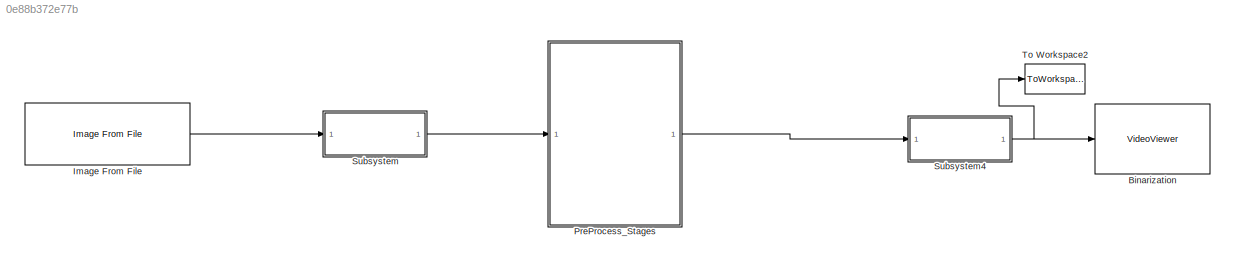
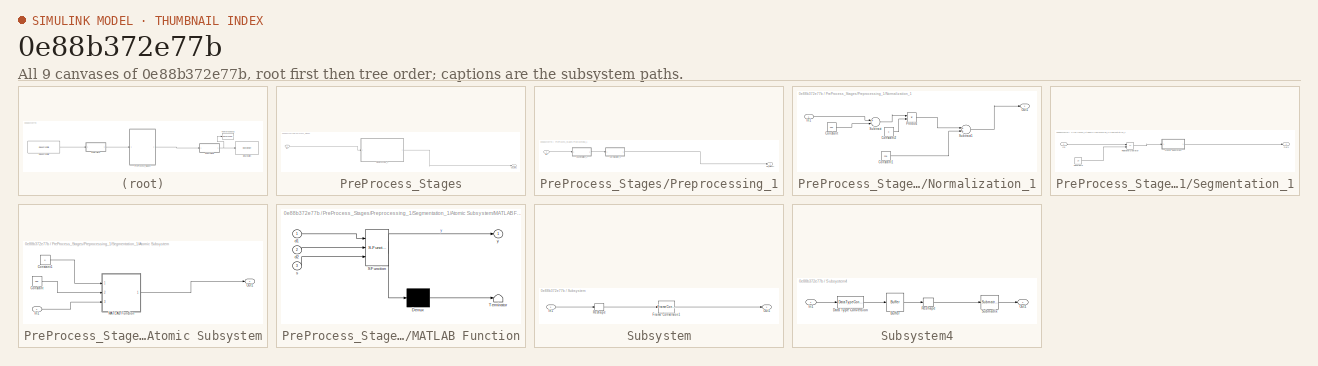
[diagram: thumbnail index - all 9 canvases of the model, root first then tree order]
MODEL slx_0e88b372e77b
KIND model
CONFIG AbsTol = auto
CONFIG EnableMultiTasking = off
CONFIG FixedStep = auto
CONFIG MaxStep = auto
CONFIG MinStep = auto
CONFIG RelTol = 1e-3
CONFIG SampleTimeConstraint = Unconstrained
CONFIG Solver = FixedStepDiscrete
CONFIG SolverName = FixedStepDiscrete
CONFIG StartTime = 0.0
CONFIG StopTime = 10
BLOCK [VideoViewer] Binarization
  FigPos = [203 867 376 593]
  Ports = [1]
  ScopeSpecificationString = vipscopes.VideoViewerScopeCfg('CurrentConfiguration', extmgr.ConfigurationSet(extmgr.Configuration('Core','General UI',true),extmgr.Configuration('Core','Source UI',true),extmgr.Configuration('Sources','WiredSimulink',true),extmgr.Configuration('Visuals','Video',true),extmgr.Configuration('Tools','Image Navigation Tools',true),extmgr.Configuration('Tools','Image Tool',true),extmgr.Configuration('T...<+75ch>
  colormapValue = gray(256)
BLOCK [Reference] Image From File  REF=visionsources/Image From File
  Ports = [0, 1]
  SourceBlock = visionsources/Image From File
  SourceProductBaseCode = VP
  SourceProductName = Computer Vision System Toolbox
  SourceType = Image From File
  Tag = vipblks_nd
BLOCK [SubSystem] PreProcess_Stages
  Ports = [1, 1]
  RequestExecContextInheritance = off
  TreatAsAtomicUnit = on
BLOCK [Inport] PreProcess_Stages/In1
  IconDisplay = Port number
BLOCK [Outport] PreProcess_Stages/Out_Bin1
  IconDisplay = Port number
BLOCK [SubSystem] PreProcess_Stages/Preprocessing_1
  Ports = [1, 1]
  RequestExecContextInheritance = off
  TreatAsAtomicUnit = on
BLOCK [Inport] PreProcess_Stages/Preprocessing_1/In1
  IconDisplay = Port number
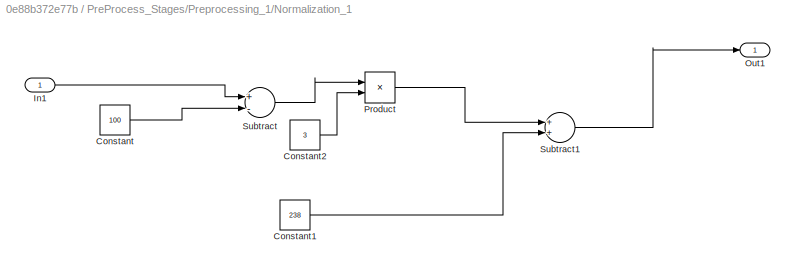
BLOCK [SubSystem] PreProcess_Stages/Preprocessing_1/Normalization_1
  Ports = [1, 1]
  RequestExecContextInheritance = off
  TreatAsAtomicUnit = on
BLOCK [Constant] PreProcess_Stages/Preprocessing_1/Normalization_1/Constant
  OutDataTypeStr = uint8
  SampleTime = -1
  Value = 100
BLOCK [Constant] PreProcess_Stages/Preprocessing_1/Normalization_1/Constant1
  OutDataTypeStr = uint8
  SampleTime = -1
  Value = 238
BLOCK [Constant] PreProcess_Stages/Preprocessing_1/Normalization_1/Constant2
  OutDataTypeStr = uint8
  SampleTime = -1
  Value = 3
BLOCK [Inport] PreProcess_Stages/Preprocessing_1/Normalization_1/In1
  IconDisplay = Port number
BLOCK [Outport] PreProcess_Stages/Preprocessing_1/Normalization_1/Out1
  IconDisplay = Port number
BLOCK [Product] PreProcess_Stages/Preprocessing_1/Normalization_1/Product
  InputSameDT = off
  OutDataTypeStr = Inherit: Inherit via internal rule
  Ports = [2, 1]
  RndMeth = Floor
  SaturateOnIntegerOverflow = off
BLOCK [Sum] PreProcess_Stages/Preprocessing_1/Normalization_1/Subtract
  InputSameDT = off
  Inputs = +-
  OutDataTypeStr = Inherit: Inherit via internal rule
  Ports = [2, 1]
  SaturateOnIntegerOverflow = off
BLOCK [Sum] PreProcess_Stages/Preprocessing_1/Normalization_1/Subtract1
  InputSameDT = off
  OutDataTypeStr = Inherit: Inherit via internal rule
  Ports = [2, 1]
  SaturateOnIntegerOverflow = off
BLOCK [Outport] PreProcess_Stages/Preprocessing_1/Out_Binary
  IconDisplay = Port number
BLOCK [SubSystem] PreProcess_Stages/Preprocessing_1/Segmentation_1
  Ports = [1, 1]
  RequestExecContextInheritance = off
  TreatAsAtomicUnit = on
BLOCK [SubSystem] PreProcess_Stages/Preprocessing_1/Segmentation_1/Atomic Subsystem
  Ports = [1, 1]
  RequestExecContextInheritance = off
  TreatAsAtomicUnit = on
BLOCK [Constant] PreProcess_Stages/Preprocessing_1/Segmentation_1/Atomic Subsystem/Constant
  Value = 255
BLOCK [Constant] PreProcess_Stages/Preprocessing_1/Segmentation_1/Atomic Subsystem/Constant1
  Value = 0
BLOCK [Inport] PreProcess_Stages/Preprocessing_1/Segmentation_1/Atomic Subsystem/In1
  IconDisplay = Port number
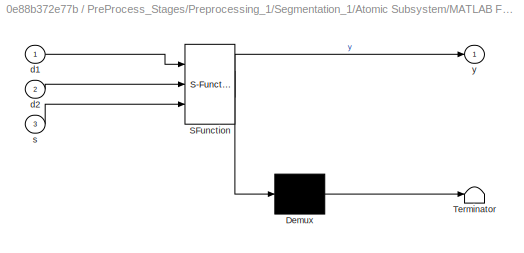
BLOCK [SubSystem] PreProcess_Stages/Preprocessing_1/Segmentation_1/Atomic Subsystem/MATLAB Function
  ErrorFcn = Stateflow.Translate.translate
  PermitHierarchicalResolution = ExplicitOnly
  Ports = [3, 1]
  RequestExecContextInheritance = off
  SFBlockType = MATLAB Function
  TreatAsAtomicUnit = on
BLOCK [Demux] PreProcess_Stages/Preprocessing_1/Segmentation_1/Atomic Subsystem/MATLAB Function/ Demux 
  Outputs = 1
  Ports = [1, 1]
BLOCK [S-Function] PreProcess_Stages/Preprocessing_1/Segmentation_1/Atomic Subsystem/MATLAB Function/ SFunction 
  EnableBusSupport = on
  FunctionName = sf_sfun
  PortCounts = [3 2]
  Ports = [3, 2]
  SFcnIsStateOwnerBlock = off
  SFunctionDeploymentMode = off
  Tag = Stateflow S-Function Normalisation11 2
BLOCK [Terminator] PreProcess_Stages/Preprocessing_1/Segmentation_1/Atomic Subsystem/MATLAB Function/ Terminator 
BLOCK [Inport] PreProcess_Stages/Preprocessing_1/Segmentation_1/Atomic Subsystem/MATLAB Function/d1
  IconDisplay = Port number
BLOCK [Inport] PreProcess_Stages/Preprocessing_1/Segmentation_1/Atomic Subsystem/MATLAB Function/d2
  IconDisplay = Port number
  Port = 2
BLOCK [Inport] PreProcess_Stages/Preprocessing_1/Segmentation_1/Atomic Subsystem/MATLAB Function/s
  IconDisplay = Port number
  Port = 3
BLOCK [Outport] PreProcess_Stages/Preprocessing_1/Segmentation_1/Atomic Subsystem/MATLAB Function/y
  IconDisplay = Port number
BLOCK [Outport] PreProcess_Stages/Preprocessing_1/Segmentation_1/Atomic Subsystem/Out1
  IconDisplay = Port number
BLOCK [Constant] PreProcess_Stages/Preprocessing_1/Segmentation_1/Constant2
  OutDataTypeStr = fixdt(1,16)
  SampleTime = -1
  Value = 10
BLOCK [Inport] PreProcess_Stages/Preprocessing_1/Segmentation_1/In1
  IconDisplay = Port number
BLOCK [Outport] PreProcess_Stages/Preprocessing_1/Segmentation_1/Out1
  IconDisplay = Port number
BLOCK [RelationalOperator] PreProcess_Stages/Preprocessing_1/Segmentation_1/Relational Operator
  InputSameDT = off
  Operator = <=
  OutDataTypeStr = boolean
  Ports = [2, 1]
BLOCK [SubSystem] Subsystem
  Ports = [1, 1]
  RequestExecContextInheritance = off
BLOCK [FrameConversion] Subsystem/Frame Conversion1
  OutFrame = Sample-based
  Ports = [1, 1]
BLOCK [Inport] Subsystem/In1
  IconDisplay = Port number
BLOCK [Outport] Subsystem/Out1
  IconDisplay = Port number
BLOCK [Reshape] Subsystem/Reshape
  Ports = [1, 1]
BLOCK [SubSystem] Subsystem4
  Ports = [1, 1]
  RequestExecContextInheritance = off
BLOCK [Buffer] Subsystem4/Buffer
  N = 8192
  OutputFrames = off
BLOCK [DataTypeConversion] Subsystem4/Data Type Conversion
  RndMeth = Floor
  SaturateOnIntegerOverflow = off
BLOCK [Inport] Subsystem4/In1
  IconDisplay = Port number
BLOCK [Outport] Subsystem4/Out1
  IconDisplay = Port number
BLOCK [Reshape] Subsystem4/Reshape
  OutputDimensionality = Customize
  OutputDimensions = [128,64]
  Ports = [1, 1]
BLOCK [Reference] Subsystem4/Submatrix  REF=dspmtrx3/Submatrix
  Ports = [1, 1]
  SourceBlock = dspmtrx3/Submatrix
  SourceProductBaseCode = DS
  SourceProductName = DSP System Toolbox
  SourceType = Submatrix
BLOCK [ToWorkspace] To Workspace2
  MaxDataPoints = inf
  Ports = [1]
  SampleTime = -1
  Save2DSignal = 2-D array (concatenate along first dimension)
  VariableName = Binarization
LINE Image From File:1 -> Subsystem:1
LINE PreProcess_Stages/In1:1 -> PreProcess_Stages/Preprocessing_1:1
LINE PreProcess_Stages/Preprocessing_1/In1:1 -> PreProcess_Stages/Preprocessing_1/Segmentation_1:1
LINE PreProcess_Stages/Preprocessing_1/Normalization_1/Constant1:1 -> PreProcess_Stages/Preprocessing_1/Normalization_1/Subtract1:2
LINE PreProcess_Stages/Preprocessing_1/Normalization_1/Constant2:1 -> PreProcess_Stages/Preprocessing_1/Normalization_1/Product:2
LINE PreProcess_Stages/Preprocessing_1/Normalization_1/Constant:1 -> PreProcess_Stages/Preprocessing_1/Normalization_1/Subtract:2
LINE PreProcess_Stages/Preprocessing_1/Normalization_1/In1:1 -> PreProcess_Stages/Preprocessing_1/Normalization_1/Subtract:1
LINE PreProcess_Stages/Preprocessing_1/Normalization_1/Product:1 -> PreProcess_Stages/Preprocessing_1/Normalization_1/Subtract1:1
LINE PreProcess_Stages/Preprocessing_1/Normalization_1/Subtract1:1 -> PreProcess_Stages/Preprocessing_1/Normalization_1/Out1:1
LINE PreProcess_Stages/Preprocessing_1/Normalization_1/Subtract:1 -> PreProcess_Stages/Preprocessing_1/Normalization_1/Product:1
LINE PreProcess_Stages/Preprocessing_1/Normalization_1:1 -> PreProcess_Stages/Preprocessing_1/Out_Binary:1
LINE PreProcess_Stages/Preprocessing_1/Segmentation_1/Atomic Subsystem/Constant1:1 -> PreProcess_Stages/Preprocessing_1/Segmentation_1/Atomic Subsystem/MATLAB Function:1
LINE PreProcess_Stages/Preprocessing_1/Segmentation_1/Atomic Subsystem/Constant:1 -> PreProcess_Stages/Preprocessing_1/Segmentation_1/Atomic Subsystem/MATLAB Function:2
LINE PreProcess_Stages/Preprocessing_1/Segmentation_1/Atomic Subsystem/In1:1 -> PreProcess_Stages/Preprocessing_1/Segmentation_1/Atomic Subsystem/MATLAB Function:3
LINE PreProcess_Stages/Preprocessing_1/Segmentation_1/Atomic Subsystem/MATLAB Function:1 -> PreProcess_Stages/Preprocessing_1/Segmentation_1/Atomic Subsystem/Out1:1
LINE PreProcess_Stages/Preprocessing_1/Segmentation_1/Atomic Subsystem:1 -> PreProcess_Stages/Preprocessing_1/Segmentation_1/Out1:1
LINE PreProcess_Stages/Preprocessing_1/Segmentation_1/Constant2:1 -> PreProcess_Stages/Preprocessing_1/Segmentation_1/Relational Operator:2
LINE PreProcess_Stages/Preprocessing_1/Segmentation_1/In1:1 -> PreProcess_Stages/Preprocessing_1/Segmentation_1/Relational Operator:1
LINE PreProcess_Stages/Preprocessing_1/Segmentation_1/Relational Operator:1 -> PreProcess_Stages/Preprocessing_1/Segmentation_1/Atomic Subsystem:1
LINE PreProcess_Stages/Preprocessing_1/Segmentation_1:1 -> PreProcess_Stages/Preprocessing_1/Normalization_1:1
LINE PreProcess_Stages/Preprocessing_1:1 -> PreProcess_Stages/Out_Bin1:1
LINE PreProcess_Stages:1 -> Subsystem4:1
LINE Subsystem/Frame Conversion1:1 -> Subsystem/Out1:1
LINE Subsystem/In1:1 -> Subsystem/Reshape:1
LINE Subsystem/Reshape:1 -> Subsystem/Frame Conversion1:1
LINE Subsystem4/Buffer:1 -> Subsystem4/Reshape:1
LINE Subsystem4/Data Type Conversion:1 -> Subsystem4/Buffer:1
LINE Subsystem4/In1:1 -> Subsystem4/Data Type Conversion:1
LINE Subsystem4/Reshape:1 -> Subsystem4/Submatrix:1
LINE Subsystem4/Submatrix:1 -> Subsystem4/Out1:1
NET Subsystem4:1 -> Binarization:1, To Workspace2:1
LINE Subsystem:1 -> PreProcess_Stages:1
note: NET lines group one-source signal fan-out (src -> all destinations, sorted); 1:1 wires keep LINE
CHART PreProcess_Stages/Preprocessing_1/Segmentation_1/Atomic Subsystem/MATLAB Function states=1 transitions=1
  STATE_LABEL 'eML_blk_kernel()'
  STATE_LABEL 'SCRIPT:\nfunction y = fcn(d1,d2,s)\n%#codegen\nif(s == true)\n    y = uint8(d1);\nelse\n    y = uint8(d2);\nend'
